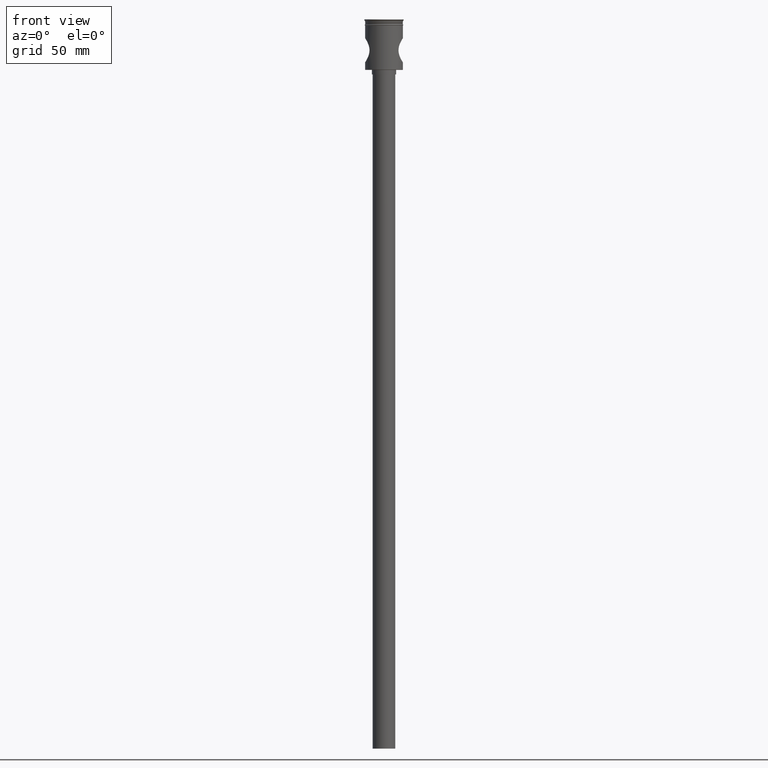
[diagram: clean part render]
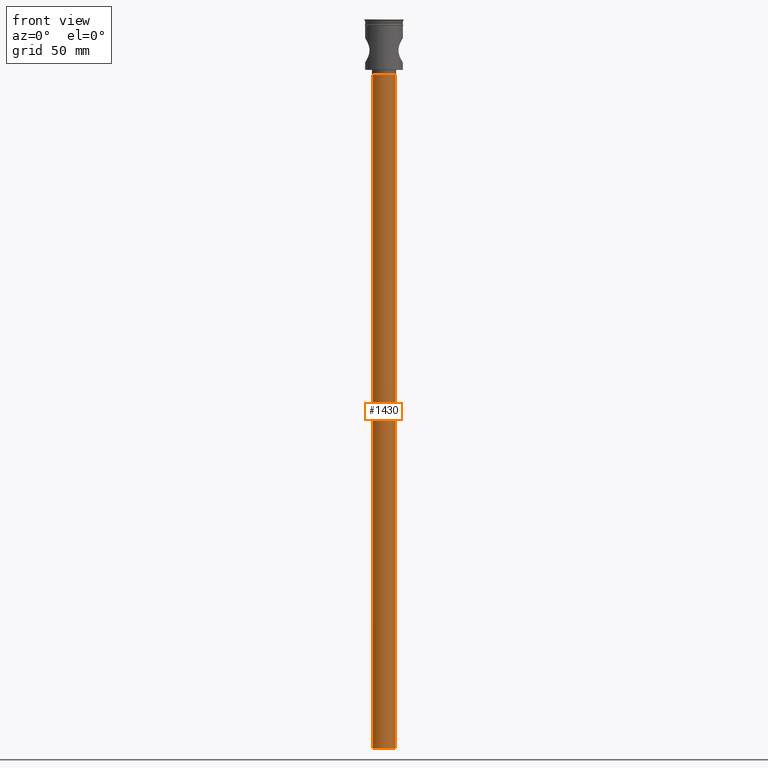
[diagram: same view with one face highlighted and labeled with its STEP entity id]
A machine part, front view. The second image highlights one B-rep face of the part: STEP entity #1430.
In plain terms, the highlighted cylindrical surface (edge-blend (fillet) strip) has radius 7.5 mm, axis along (-0, -0, 1).
Its self-contained STEP definition (entity closure, byte-faithful):
#24 = EDGE_CURVE ( 'NONE', #586, #1321, #709, .T. ) ;
#39 = DIRECTION ( 'NONE',  ( 0.000000000000000000, 0.000000000000000000, -1.000000000000000000 ) ) ;
#219 = CARTESIAN_POINT ( 'NONE',  ( 7.500000000000000000, 0.000000000000000000, -483.5000000000000568 ) ) ;
#278 = AXIS2_PLACEMENT_3D ( 'NONE', #731, #367, #1198 ) ;
#312 = EDGE_CURVE ( 'NONE', #1260, #586, #1205, .T. ) ;
#367 = DIRECTION ( 'NONE',  ( -0.000000000000000000, -0.000000000000000000, 1.000000000000000000 ) ) ;
#405 = VERTEX_POINT ( 'NONE', #886 ) ;
#412 = AXIS2_PLACEMENT_3D ( 'NONE', #673, #39, #984 ) ;
#431 = DIRECTION ( 'NONE',  ( -0.000000000000000000, -0.000000000000000000, 1.000000000000000000 ) ) ;
#493 = CARTESIAN_POINT ( 'NONE',  ( -7.500000000000000000, 9.184850993605147944E-16, -483.5000000000000568 ) ) ;
#503 = ORIENTED_EDGE ( 'NONE', *, *, #802, .T. ) ;
#568 = LINE ( 'NONE', #219, #674 ) ;
#586 = VERTEX_POINT ( 'NONE', #841 ) ;
#652 = CARTESIAN_POINT ( 'NONE',  ( -7.500000000000000000, 9.184850993605147944E-16, -36.50000000000000711 ) ) ;
#673 = CARTESIAN_POINT ( 'NONE',  ( 0.000000000000000000, 0.000000000000000000, -36.50000000000000711 ) ) ;
#674 = VECTOR ( 'NONE', #431, 1000.000000000000000 ) ;
#709 = LINE ( 'NONE', #493, #1542 ) ;
#731 = CARTESIAN_POINT ( 'NONE',  ( 0.000000000000000000, 0.000000000000000000, -483.5000000000000568 ) ) ;
#802 = EDGE_CURVE ( 'NONE', #1260, #405, #568, .T. ) ;
#841 = CARTESIAN_POINT ( 'NONE',  ( -7.500000000000000000, 9.184850993605147944E-16, -483.5000000000000568 ) ) ;
#886 = CARTESIAN_POINT ( 'NONE',  ( 7.500000000000000000, 0.000000000000000000, -36.50000000000000711 ) ) ;
#984 = DIRECTION ( 'NONE',  ( -1.000000000000000000, 0.000000000000000000, 0.000000000000000000 ) ) ;
#986 = AXIS2_PLACEMENT_3D ( 'NONE', #1412, #1327, #1206 ) ;
#991 = ORIENTED_EDGE ( 'NONE', *, *, #312, .F. ) ;
#1198 = DIRECTION ( 'NONE',  ( 1.000000000000000000, 0.000000000000000000, 0.000000000000000000 ) ) ;
#1203 = DIRECTION ( 'NONE',  ( -0.000000000000000000, -0.000000000000000000, 1.000000000000000000 ) ) ;
#1205 = CIRCLE ( 'NONE', #986, 7.500000000000000000 ) ;
#1206 = DIRECTION ( 'NONE',  ( -1.000000000000000000, 0.000000000000000000, 0.000000000000000000 ) ) ;
#1260 = VERTEX_POINT ( 'NONE', #1362 ) ;
#1300 = CIRCLE ( 'NONE', #412, 7.500000000000000000 ) ;
#1310 = EDGE_CURVE ( 'NONE', #405, #1321, #1300, .T. ) ;
#1321 = VERTEX_POINT ( 'NONE', #652 ) ;
#1327 = DIRECTION ( 'NONE',  ( 0.000000000000000000, 0.000000000000000000, -1.000000000000000000 ) ) ;
#1329 = CYLINDRICAL_SURFACE ( 'NONE', #278, 7.500000000000000000 ) ;
#1362 = CARTESIAN_POINT ( 'NONE',  ( 7.500000000000000000, 0.000000000000000000, -483.5000000000000568 ) ) ;
#1377 = ORIENTED_EDGE ( 'NONE', *, *, #24, .F. ) ;
#1412 = CARTESIAN_POINT ( 'NONE',  ( 0.000000000000000000, 0.000000000000000000, -483.5000000000000568 ) ) ;
#1430 = ADVANCED_FACE ( 'NONE', ( #1550 ), #1329, .T. ) ;
#1485 = EDGE_LOOP ( 'NONE', ( #1377, #991, #503, #1488 ) ) ;
#1488 = ORIENTED_EDGE ( 'NONE', *, *, #1310, .T. ) ;
#1542 = VECTOR ( 'NONE', #1203, 1000.000000000000000 ) ;
#1550 = FACE_OUTER_BOUND ( 'NONE', #1485, .T. ) ;